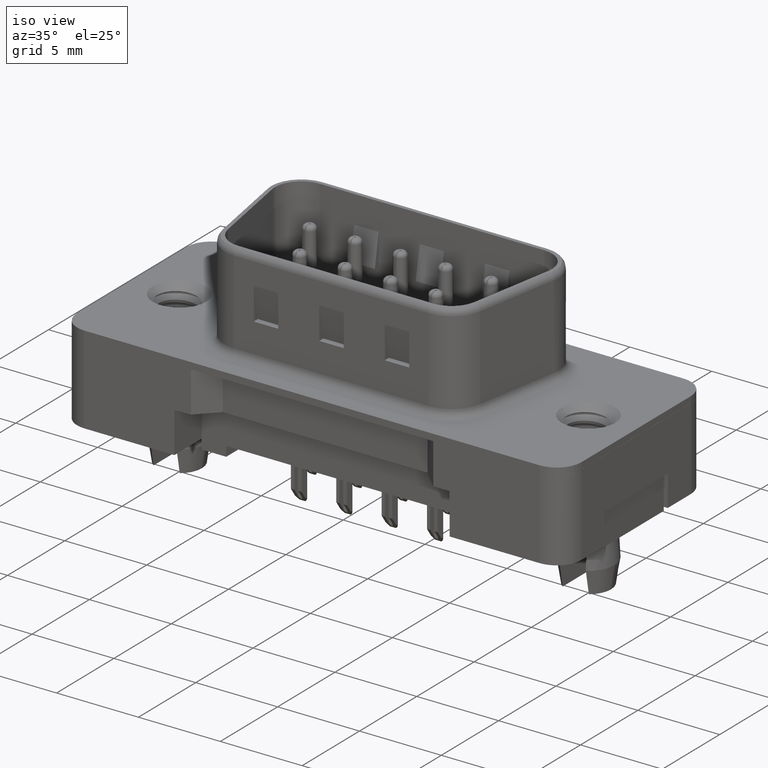
[diagram: clean part render]
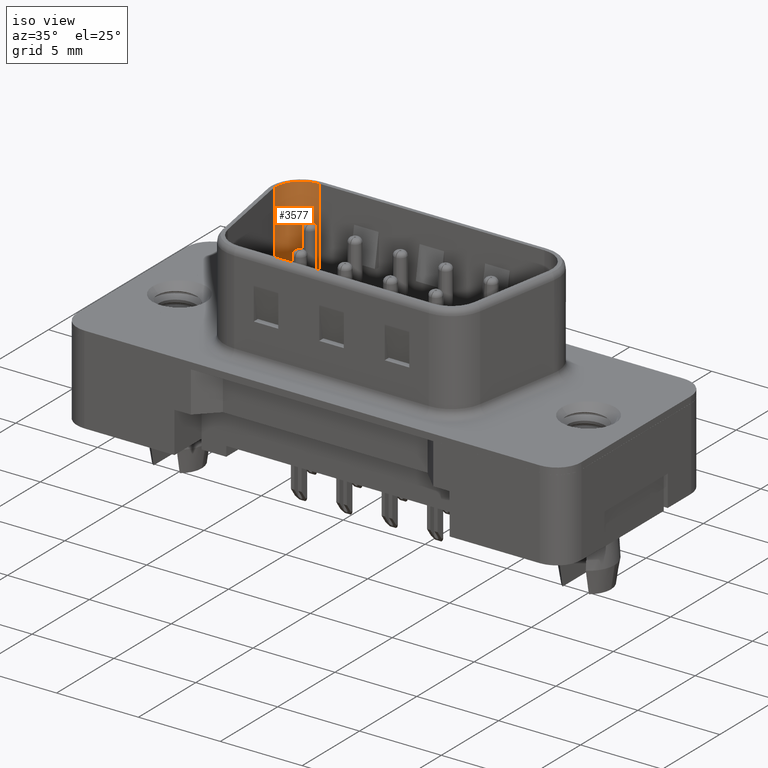
[diagram: same view with one face highlighted and labeled with its STEP entity id]
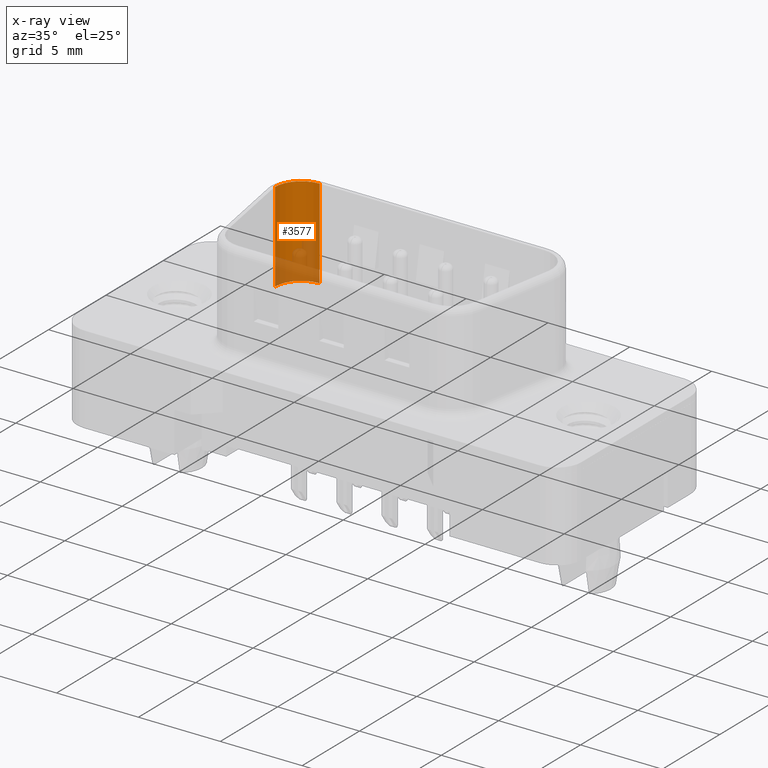
[diagram: x-ray of the same camera — body ghosted, the highlighted face saturated]
A machine part, iso view. The second image highlights one B-rep face of the part: STEP entity #3577.
The next image is the same camera in x-ray: the body ghosted, the highlighted face saturated — about 34% of this face is hidden behind the body in this view.
In plain terms, the highlighted cylindrical surface (edge-blend (fillet) strip) has radius 1.6 mm, axis along (-0, -0, -1).
Its self-contained STEP definition (entity closure, byte-faithful):
#153 = CIRCLE ( 'NONE', #12043, 1.599999999999999867 ) ;
#331 = EDGE_CURVE ( 'NONE', #5122, #11727, #5545, .T. ) ;
#426 = VECTOR ( 'NONE', #985, 1000.000000000000000 ) ;
#985 = DIRECTION ( 'NONE',  ( -0.0000000000000000000, -0.0000000000000000000, -1.000000000000000000 ) ) ;
#1654 = FACE_OUTER_BOUND ( 'NONE', #10546, .T. ) ;
#2473 = CARTESIAN_POINT ( 'NONE',  ( 5.635000000000001563, 2.579999999999997407, 6.400000000000000355 ) ) ;
#2552 = DIRECTION ( 'NONE',  ( -1.000000000000000000, 0.0000000000000000000, 0.0000000000000000000 ) ) ;
#2608 = CIRCLE ( 'NONE', #3835, 1.599999999999999867 ) ;
#3577 = ADVANCED_FACE ( 'NONE', ( #1654 ), #6151, .F. ) ;
#3710 = DIRECTION ( 'NONE',  ( -0.0000000000000000000, -0.0000000000000000000, -1.000000000000000000 ) ) ;
#3835 = AXIS2_PLACEMENT_3D ( 'NONE', #2473, #14117, #8342 ) ;
#3844 = EDGE_CURVE ( 'NONE', #13142, #4248, #5386, .T. ) ;
#4006 = ORIENTED_EDGE ( 'NONE', *, *, #12743, .F. ) ;
#4248 = VERTEX_POINT ( 'NONE', #10334 ) ;
#5122 = VERTEX_POINT ( 'NONE', #14809 ) ;
#5386 = LINE ( 'NONE', #9931, #5855 ) ;
#5545 = LINE ( 'NONE', #9034, #426 ) ;
#5855 = VECTOR ( 'NONE', #10075, 1000.000000000000000 ) ;
#6077 = CARTESIAN_POINT ( 'NONE',  ( 5.635000000000001563, 2.579999999999997407, 6.520000000000000462 ) ) ;
#6151 = CYLINDRICAL_SURFACE ( 'NONE', #9735, 1.599999999999999867 ) ;
#6863 = ORIENTED_EDGE ( 'NONE', *, *, #3844, .F. ) ;
#7379 = CARTESIAN_POINT ( 'NONE',  ( 5.635000000000001563, 4.179999999999997939, 6.400000000000000355 ) ) ;
#8342 = DIRECTION ( 'NONE',  ( -1.000000000000000000, 0.0000000000000000000, 0.0000000000000000000 ) ) ;
#9034 = CARTESIAN_POINT ( 'NONE',  ( 4.035000000000001918, 2.579999999999997407, 6.520000000000000462 ) ) ;
#9735 = AXIS2_PLACEMENT_3D ( 'NONE', #6077, #3710, #2552 ) ;
#9931 = CARTESIAN_POINT ( 'NONE',  ( 5.635000000000001563, 4.179999999999997051, 6.520000000000000462 ) ) ;
#10075 = DIRECTION ( 'NONE',  ( -0.0000000000000000000, -0.0000000000000000000, -1.000000000000000000 ) ) ;
#10085 = DIRECTION ( 'NONE',  ( 0.0000000000000000000, 0.0000000000000000000, 1.000000000000000000 ) ) ;
#10334 = CARTESIAN_POINT ( 'NONE',  ( 5.635000000000001563, 4.179999999999997051, 0.8999999999999998002 ) ) ;
#10546 = EDGE_LOOP ( 'NONE', ( #4006, #10690, #11338, #6863 ) ) ;
#10586 = CARTESIAN_POINT ( 'NONE',  ( 4.035000000000001918, 2.579999999999997407, 0.8999999999999998002 ) ) ;
#10690 = ORIENTED_EDGE ( 'NONE', *, *, #331, .T. ) ;
#10989 = EDGE_CURVE ( 'NONE', #4248, #11727, #153, .T. ) ;
#11338 = ORIENTED_EDGE ( 'NONE', *, *, #10989, .F. ) ;
#11727 = VERTEX_POINT ( 'NONE', #10586 ) ;
#12043 = AXIS2_PLACEMENT_3D ( 'NONE', #13670, #10085, #12740 ) ;
#12740 = DIRECTION ( 'NONE',  ( -1.000000000000000000, 0.0000000000000000000, 0.0000000000000000000 ) ) ;
#12743 = EDGE_CURVE ( 'NONE', #5122, #13142, #2608, .T. ) ;
#13142 = VERTEX_POINT ( 'NONE', #7379 ) ;
#13670 = CARTESIAN_POINT ( 'NONE',  ( 5.635000000000001563, 2.579999999999997407, 0.8999999999999998002 ) ) ;
#14117 = DIRECTION ( 'NONE',  ( -0.0000000000000000000, -0.0000000000000000000, -1.000000000000000000 ) ) ;
#14809 = CARTESIAN_POINT ( 'NONE',  ( 4.035000000000001918, 2.579999999999997407, 6.400000000000000355 ) ) ;